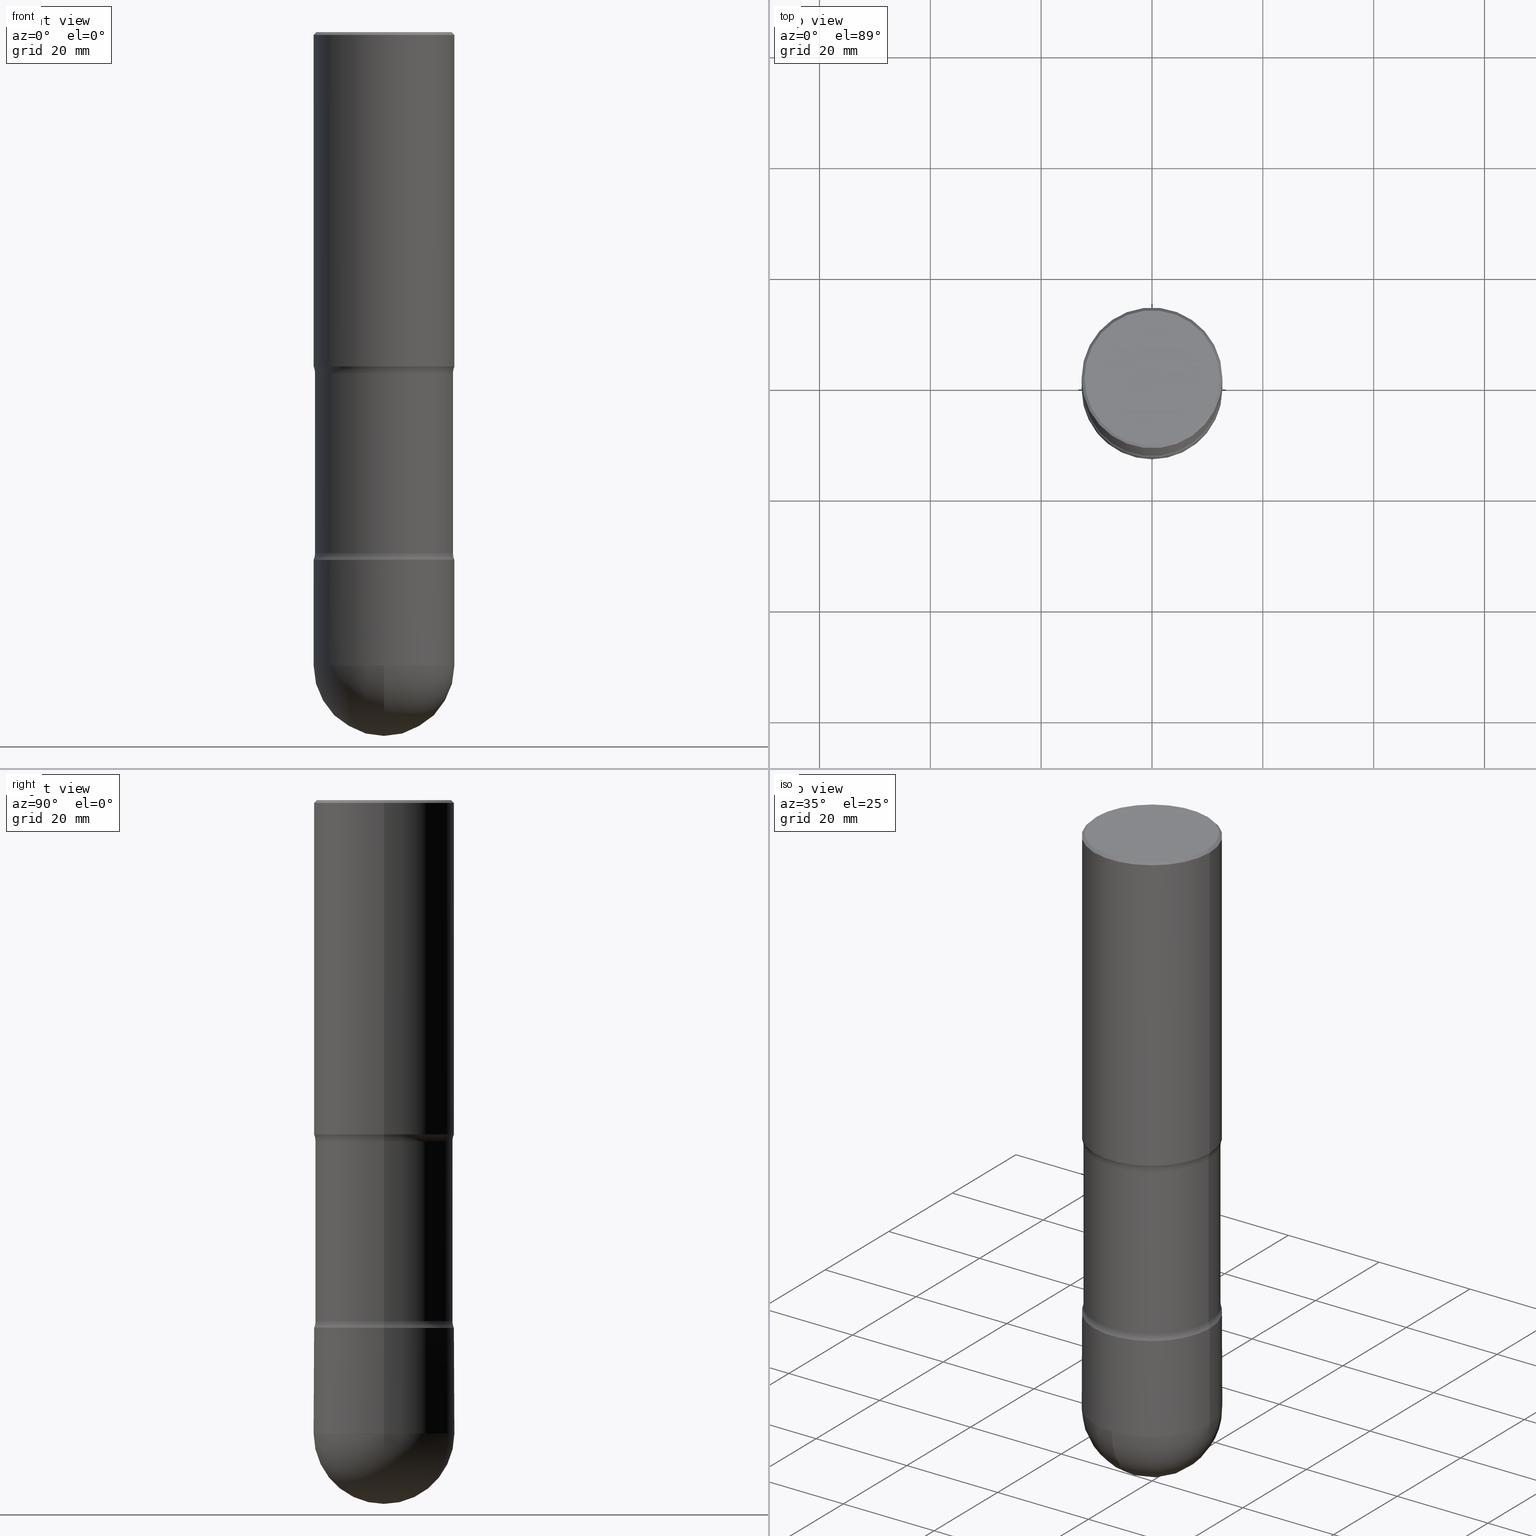
[diagram: canonical four-view strip — front | top / right | iso, engineering-drawing reading convention]
A machine part, canonical four-view strip (front | top / right | iso — engineering-drawing reading convention). The complete STEP part file that produces these views, byte-faithful:
ISO-10303-21;
HEADER;
FILE_DESCRIPTION (( 'STEP AP203' ),
    '1' );
FILE_NAME ('34954.STEP',
    '2024-02-29T19:23:50',
    ( '' ),
    ( '' ),
    'SwSTEP 2.0',
    'SolidWorks 2023',
    '' );
FILE_SCHEMA (( 'CONFIG_CONTROL_DESIGN' ));
ENDSEC;

DATA;
#1 = CARTESIAN_POINT ( 'NONE',  ( 0.4999999999999998335, -1.652330401954756320E-14, -3.750000000000000000 ) ) ;
#2 = AXIS2_PLACEMENT_3D ( 'NONE', #526, #307, #534 ) ;
#3 = FACE_OUTER_BOUND ( 'NONE', #135, .T. ) ;
#4 = CONICAL_SURFACE ( 'NONE', #443, 0.4994999999999992779, 0.7853981633970592569 ) ;
#5 = ORIENTED_EDGE ( 'NONE', *, *, #234, .F. ) ;
#6 = CARTESIAN_POINT ( 'NONE',  ( -0.4999999999999993339, -1.084964684392748411E-14, -4.499999999999999112 ) ) ;
#7 = DIRECTION ( 'NONE',  ( 2.445468806185136597E-29, -3.491481338843145583E-15, -1.000000000000000000 ) ) ;
#8 = ADVANCED_FACE ( 'NONE', ( #370 ), #158, .T. ) ;
#9 = ORIENTED_EDGE ( 'NONE', *, *, #167, .T. ) ;
#10 = FACE_OUTER_BOUND ( 'NONE', #161, .T. ) ;
#11 = APPROVAL_ROLE ( '' ) ;
#12 = ORIENTED_EDGE ( 'NONE', *, *, #196, .F. ) ;
#13 = EDGE_CURVE ( 'NONE', #148, #179, #529, .T. ) ;
#14 = PERSON_AND_ORGANIZATION ( #439, #30 ) ;
#15 = AXIS2_PLACEMENT_3D ( 'NONE', #140, #57, #109 ) ;
#16 = TOROIDAL_SURFACE ( 'NONE', #15, 0.6149999999999876676, 0.1249999999999882871 ) ;
#17 = ORIENTED_EDGE ( 'NONE', *, *, #13, .F. ) ;
#18 = LOCAL_TIME ( 14, 23, 50.00000000000000000, #231 ) ;
#19 = ADVANCED_BREP_SHAPE_REPRESENTATION ( '34954', ( #278, #82, #519 ), #531 ) ;
#20 = CARTESIAN_POINT ( 'NONE',  ( 1.100460962783311244E-28, -1.571166602479415374E-14, -4.499999999999999112 ) ) ;
#21 = LINE ( 'NONE', #125, #518 ) ;
#22 = VERTEX_POINT ( 'NONE', #539 ) ;
#23 = CIRCLE ( 'NONE', #289, 0.4999999999999993339 ) ;
#24 = DIRECTION ( 'NONE',  ( 1.000000000000000000, -6.982962677686264344E-15, 0.000000000000000000 ) ) ;
#25 = CC_DESIGN_APPROVAL ( #561, ( #89 ) ) ;
#26 = CARTESIAN_POINT ( 'NONE',  ( 9.050705008053328258E-29, -1.292200806612949328E-14, -3.701010205144336318 ) ) ;
#27 = EDGE_CURVE ( 'NONE', #495, #434, #452, .T. ) ;
#28 = ORIENTED_EDGE ( 'NONE', *, *, #91, .T. ) ;
#29 = CIRCLE ( 'NONE', #253, 0.4899999999999994360 ) ;
#30 = ORGANIZATION ( 'UNSPECIFIED', 'UNSPECIFIED', '' ) ;
#31 = EDGE_CURVE ( 'NONE', #179, #495, #284, .T. ) ;
#32 = ORIENTED_EDGE ( 'NONE', *, *, #80, .F. ) ;
#33 = DIRECTION ( 'NONE',  ( -1.000000000000000000, 6.982962677686266711E-15, 0.000000000000000000 ) ) ;
#34 = PLANE ( 'NONE',  #290 ) ;
#35 = AXIS2_PLACEMENT_3D ( 'NONE', #501, #288, #246 ) ;
#36 = ORIENTED_EDGE ( 'NONE', *, *, #130, .T. ) ;
#37 = CALENDAR_DATE ( 2024, 29, 2 ) ;
#38 =( LENGTH_UNIT ( ) NAMED_UNIT ( * ) SI_UNIT ( $, .METRE. ) );
#39 = EDGE_LOOP ( 'NONE', ( #446, #298, #36, #232 ) ) ;
#40 = DIRECTION ( 'NONE',  ( -6.982962677686265922E-15, -1.000000000000000000, 3.278217592397116651E-15 ) ) ;
#41 = CIRCLE ( 'NONE', #334, 0.4998510749934461650 ) ;
#42 = LINE ( 'NONE', #223, #397 ) ;
#43 = MECHANICAL_CONTEXT ( 'NONE', #449, 'mechanical' ) ;
#44 = EDGE_CURVE ( 'NONE', #281, #69, #502, .T. ) ;
#45 = ORIENTED_EDGE ( 'NONE', *, *, #250, .T. ) ;
#46 = ORIENTED_EDGE ( 'NONE', *, *, #31, .F. ) ;
#47 = COORDINATED_UNIVERSAL_TIME_OFFSET ( 5, 0, .BEHIND. ) ;
#48 = CIRCLE ( 'NONE', #65, 0.4999999999999998335 ) ;
#49 = DIRECTION ( 'NONE',  ( -1.000000000000000000, 6.982962677686266711E-15, -4.883557194083113462E-29 ) ) ;
#50 = APPROVAL_PERSON_ORGANIZATION ( #483, #561, #11 ) ;
#51 = ORIENTED_EDGE ( 'NONE', *, *, #366, .F. ) ;
#52 = CALENDAR_DATE ( 2024, 29, 2 ) ;
#53 = CARTESIAN_POINT ( 'NONE',  ( 1.100460962783311244E-28, -1.571166602479415374E-14, -4.499999999999999112 ) ) ;
#54 = CALENDAR_DATE ( 2024, 29, 2 ) ;
#55 = DIRECTION ( 'NONE',  ( -1.000000000000000000, 6.982962677686265922E-15, -4.883557194083112340E-29 ) ) ;
#56 = APPLICATION_CONTEXT ( 'configuration controlled 3d designs of mechanical parts and assemblies' ) ;
#57 = DIRECTION ( 'NONE',  ( 2.445468806185136597E-29, -3.491481338843145583E-15, -1.000000000000000000 ) ) ;
#58 = AXIS2_PLACEMENT_3D ( 'NONE', #522, #68, #475 ) ;
#59 = CARTESIAN_POINT ( 'NONE',  ( -0.4999999999999997224, 3.421651712066267296E-15, -0.02000000000000033348 ) ) ;
#60 = EDGE_CURVE ( 'NONE', #148, #434, #48, .T. ) ;
#61 = DIRECTION ( 'NONE',  ( 1.000000000000000000, -6.982962677686264344E-15, 0.000000000000000000 ) ) ;
#62 = CARTESIAN_POINT ( 'NONE',  ( 5.807988414689705023E-29, -8.292268179752478006E-15, -2.375000000000002220 ) ) ;
#63 = LINE ( 'NONE', #245, #362 ) ;
#64 = CYLINDRICAL_SURFACE ( 'NONE', #477, 0.4999999999999993339 ) ;
#65 = AXIS2_PLACEMENT_3D ( 'NONE', #92, #263, #471 ) ;
#66 = CIRCLE ( 'NONE', #207, 0.4998510749934461650 ) ;
#67 = LINE ( 'NONE', #229, #479 ) ;
#68 = DIRECTION ( 'NONE',  ( -2.445468806185136597E-29, 3.491481338843145583E-15, 1.000000000000000000 ) ) ;
#69 = VERTEX_POINT ( 'NONE', #386 ) ;
#70 = DIRECTION ( 'NONE',  ( 2.445468806185136597E-29, -3.491481338843145583E-15, -1.000000000000000000 ) ) ;
#71 = ORIENTED_EDGE ( 'NONE', *, *, #250, .F. ) ;
#72 = CARTESIAN_POINT ( 'NONE',  ( -0.4994999999999992779, -9.543894055540101327E-15, -3.750000000000000000 ) ) ;
#73 = CIRCLE ( 'NONE', #202, 0.4999999999999999445 ) ;
#74 = PRODUCT_DEFINITION_FORMATION_WITH_SPECIFIED_SOURCE ( 'ANY', '', #285, .NOT_KNOWN. ) ;
#75 = DIRECTION ( 'NONE',  ( 1.000000000000000000, 0.000000000000000000, 0.000000000000000000 ) ) ;
#76 = DIRECTION ( 'NONE',  ( 2.445468806185136597E-29, -3.491481338843145583E-15, -1.000000000000000000 ) ) ;
#77 = DIRECTION ( 'NONE',  ( 1.000000000000000000, -6.982962677686265922E-15, 4.883557194083112901E-29 ) ) ;
#78 = FACE_OUTER_BOUND ( 'NONE', #403, .T. ) ;
#79 = APPROVAL ( #319, 'UNSPECIFIED' ) ;
#80 = EDGE_CURVE ( 'NONE', #226, #166, #42, .T. ) ;
#81 = CARTESIAN_POINT ( 'NONE',  ( 1.087633468445620528E-28, -1.589536304466625962E-14, -4.500000000000000000 ) ) ;
#82 = MANIFOLD_SOLID_BREP ( 'Body-Move/Copy2[2]', #408 ) ;
#83 = ORIENTED_EDGE ( 'NONE', *, *, #426, .T. ) ;
#84 = ADVANCED_FACE ( 'NONE', ( #481 ), #254, .T. ) ;
#85 = AXIS2_PLACEMENT_3D ( 'NONE', #277, #142, #541 ) ;
#86 = DIRECTION ( 'NONE',  ( 1.000000000000000000, -6.982962677686265922E-15, 4.883557194083112901E-29 ) ) ;
#87 = CIRCLE ( 'NONE', #318, 0.4899999999999994360 ) ;
#88 = CARTESIAN_POINT ( 'NONE',  ( 9.170508023194262238E-29, -1.309305502066179741E-14, -3.750000000000000000 ) ) ;
#89 = PRODUCT_DEFINITION ( 'UNKNOWN', '', #74, #114 ) ;
#90 = SHAPE_DEFINITION_REPRESENTATION ( #197, #19 ) ;
#91 = EDGE_CURVE ( 'NONE', #294, #340, #433, .T. ) ;
#92 = CARTESIAN_POINT ( 'NONE',  ( 1.087633468445620528E-28, -1.589536304466625962E-14, -4.500000000000000000 ) ) ;
#93 = ORIENTED_EDGE ( 'NONE', *, *, #514, .F. ) ;
#94 = DIRECTION ( 'NONE',  ( 2.445468806185136597E-29, -3.491481338843145583E-15, -1.000000000000000000 ) ) ;
#95 = APPROVAL_ROLE ( '' ) ;
#96 = CIRCLE ( 'NONE', #181, 0.4799999999999995937 ) ;
#97 = APPROVAL_PERSON_ORGANIZATION ( #102, #79, #188 ) ;
#98 = CARTESIAN_POINT ( 'NONE',  ( 0.4899999999999994360, -1.405430561911518224E-14, -3.701010205144336318 ) ) ;
#99 = DATE_AND_TIME ( #37, #329 ) ;
#100 = EDGE_CURVE ( 'NONE', #434, #399, #273, .T. ) ;
#101 = DIRECTION ( 'NONE',  ( 2.445468806185136877E-29, -3.491481338843145188E-15, -1.000000000000000000 ) ) ;
#102 = PERSON_AND_ORGANIZATION ( #439, #30 ) ;
#103 = ADVANCED_FACE ( 'NONE', ( #244 ), #372, .T. ) ;
#104 = ORIENTED_EDGE ( 'NONE', *, *, #100, .T. ) ;
#105 = DIRECTION ( 'NONE',  ( -2.445468806185136597E-29, 3.491481338843145583E-15, 1.000000000000000000 ) ) ;
#106 = AXIS2_PLACEMENT_3D ( 'NONE', #314, #94, #556 ) ;
#107 = CARTESIAN_POINT ( 'NONE',  ( 1.100460962783311244E-28, -1.571166602479415374E-14, -4.499999999999999112 ) ) ;
#108 = DIRECTION ( 'NONE',  ( -2.445468806185136597E-29, 3.491481338843145583E-15, 1.000000000000000000 ) ) ;
#109 = DIRECTION ( 'NONE',  ( -1.000000000000000000, 6.982962677686266711E-15, -4.883557194083113462E-29 ) ) ;
#110 = ADVANCED_FACE ( 'NONE', ( #389 ), #442, .F. ) ;
#111 = CIRCLE ( 'NONE', #85, 0.4799999999999995937 ) ;
#112 = CIRCLE ( 'NONE', #296, 0.4994999999999992779 ) ;
#113 = ORIENTED_EDGE ( 'NONE', *, *, #496, .T. ) ;
#114 = DESIGN_CONTEXT ( 'detailed design', #56, 'design' ) ;
#115 = ADVANCED_FACE ( 'NONE', ( #301 ), #16, .F. ) ;
#116 = CARTESIAN_POINT ( 'NONE',  ( 9.170508023194262238E-29, -1.309305502066179741E-14, -3.750000000000000000 ) ) ;
#117 = AXIS2_PLACEMENT_3D ( 'NONE', #107, #457, #61 ) ;
#118 = AXIS2_PLACEMENT_3D ( 'NONE', #458, #157, #369 ) ;
#119 =( NAMED_UNIT ( * ) SI_UNIT ( $, .STERADIAN. ) SOLID_ANGLE_UNIT ( ) );
#120 = ORIENTED_EDGE ( 'NONE', *, *, #333, .T. ) ;
#121 = FACE_OUTER_BOUND ( 'NONE', #249, .T. ) ;
#122 = SPHERICAL_SURFACE ( 'NONE', #377, 0.4999999999999998335 ) ;
#123 = EDGE_LOOP ( 'NONE', ( #380, #535, #342, #203 ) ) ;
#124 = EDGE_CURVE ( 'NONE', #242, #22, #29, .T. ) ;
#125 = CARTESIAN_POINT ( 'NONE',  ( -0.4999999999999998335, -9.601573681818665636E-15, -3.750000000000000000 ) ) ;
#126 = FACE_OUTER_BOUND ( 'NONE', #419, .T. ) ;
#127 = DIRECTION ( 'NONE',  ( -1.000000000000000000, 6.982962677686265922E-15, 0.000000000000000000 ) ) ;
#128 = ORIENTED_EDGE ( 'NONE', *, *, #514, .T. ) ;
#129 = LINE ( 'NONE', #267, #508 ) ;
#130 = EDGE_CURVE ( 'NONE', #193, #473, #73, .T. ) ;
#131 = AXIS2_PLACEMENT_3D ( 'NONE', #485, #507, #368 ) ;
#132 = ORIENTED_EDGE ( 'NONE', *, *, #211, .T. ) ;
#133 = PLANE ( 'NONE',  #131 ) ;
#134 = EDGE_CURVE ( 'NONE', #281, #226, #96, .T. ) ;
#135 = EDGE_LOOP ( 'NONE', ( #441, #309, #200, #185 ) ) ;
#136 = DIRECTION ( 'NONE',  ( -1.000000000000000000, 6.982962677686267499E-15, 0.000000000000000000 ) ) ;
#137 = CARTESIAN_POINT ( 'NONE',  ( 9.170508023194262238E-29, -1.309305502066179741E-14, -3.750000000000000000 ) ) ;
#138 = DIRECTION ( 'NONE',  ( 2.445468806185136877E-29, -3.491481338843145188E-15, -1.000000000000000000 ) ) ;
#139 = PERSON_AND_ORGANIZATION_ROLE ( 'design_supplier' ) ;
#140 = CARTESIAN_POINT ( 'NONE',  ( 5.927791429830635639E-29, -8.463315134284777408E-15, -2.423989794855664570 ) ) ;
#141 = ORIENTED_EDGE ( 'NONE', *, *, #496, .F. ) ;
#142 = DIRECTION ( 'NONE',  ( 2.445468806185136597E-29, -3.491481338843145583E-15, -1.000000000000000000 ) ) ;
#143 = ORIENTED_EDGE ( 'NONE', *, *, #241, .T. ) ;
#144 = CARTESIAN_POINT ( 'NONE',  ( 9.170508023194262238E-29, -1.309305502066179741E-14, -3.750000000000000000 ) ) ;
#145 = PERSON_AND_ORGANIZATION ( #439, #30 ) ;
#146 = AXIS2_PLACEMENT_3D ( 'NONE', #219, #76, #476 ) ;
#147 = DIRECTION ( 'NONE',  ( -1.000000000000000000, 6.982962677686265133E-15, 0.000000000000000000 ) ) ;
#148 = VERTEX_POINT ( 'NONE', #415 ) ;
#149 = COORDINATED_UNIVERSAL_TIME_OFFSET ( 5, 0, .BEHIND. ) ;
#150 = DIRECTION ( 'NONE',  ( -1.000000000000000000, 6.982962677686266711E-15, -4.876176775795935793E-29 ) ) ;
#151 = CARTESIAN_POINT ( 'NONE',  ( 3.351822085289404787E-15, 0.4799999999999995937, -1.669508273909557867E-15 ) ) ;
#152 = DIRECTION ( 'NONE',  ( 1.000000000000000000, -6.982962677686264344E-15, 0.000000000000000000 ) ) ;
#153 = EDGE_CURVE ( 'NONE', #192, #22, #417, .T. ) ;
#154 = AXIS2_PLACEMENT_3D ( 'NONE', #116, #330, #324 ) ;
#155 = AXIS2_PLACEMENT_3D ( 'NONE', #430, #300, #349 ) ;
#156 = CARTESIAN_POINT ( 'NONE',  ( 4.890937612370354609E-31, -6.982962677686407473E-17, -0.02000000000000033348 ) ) ;
#157 = DIRECTION ( 'NONE',  ( 2.445468806185136597E-29, -3.491481338843145583E-15, -1.000000000000000000 ) ) ;
#158 = PLANE ( 'NONE',  #528 ) ;
#159 = DIRECTION ( 'NONE',  ( 2.445468806185136597E-29, -3.491481338843145583E-15, -1.000000000000000000 ) ) ;
#160 = CARTESIAN_POINT ( 'NONE',  ( 0.4994999999999992779, -1.658165776406015835E-14, -3.750000000000000000 ) ) ;
#161 = EDGE_LOOP ( 'NONE', ( #421, #311, #478, #128 ) ) ;
#162 = EDGE_LOOP ( 'NONE', ( #554, #537 ) ) ;
#163 = CIRCLE ( 'NONE', #505, 0.1249999999999882871 ) ;
#164 = CC_DESIGN_SECURITY_CLASSIFICATION ( #344, ( #74 ) ) ;
#165 = ORIENTED_EDGE ( 'NONE', *, *, #426, .F. ) ;
#166 = VERTEX_POINT ( 'NONE', #59 ) ;
#167 = EDGE_CURVE ( 'NONE', #399, #179, #23, .T. ) ;
#168 = DIRECTION ( 'NONE',  ( -1.000000000000000000, 6.982962677686267499E-15, 0.000000000000000000 ) ) ;
#169 = ORIENTED_EDGE ( 'NONE', *, *, #153, .F. ) ;
#170 = LENGTH_MEASURE_WITH_UNIT ( LENGTH_MEASURE( 0.02539999999999999897 ), #38 );
#171 = AXIS2_PLACEMENT_3D ( 'NONE', #406, #423, #546 ) ;
#172 = AXIS2_PLACEMENT_3D ( 'NONE', #474, #215, #261 ) ;
#173 = DIMENSIONAL_EXPONENTS ( 1.000000000000000000, 0.000000000000000000, 0.000000000000000000, 0.000000000000000000, 0.000000000000000000, 0.000000000000000000, 0.000000000000000000 ) ;
#174 =( CONVERSION_BASED_UNIT ( 'INCH', #170 ) LENGTH_UNIT ( ) NAMED_UNIT ( #173 ) );
#175 = ORIENTED_EDGE ( 'NONE', *, *, #13, .T. ) ;
#176 = CYLINDRICAL_SURFACE ( 'NONE', #58, 0.4999999999999993339 ) ;
#177 = DIRECTION ( 'NONE',  ( -1.000000000000000000, 6.982962677686265922E-15, -4.876176775795935793E-29 ) ) ;
#178 = FACE_OUTER_BOUND ( 'NONE', #424, .T. ) ;
#179 = VERTEX_POINT ( 'NONE', #359 ) ;
#180 = CARTESIAN_POINT ( 'NONE',  ( 9.169649480249156461E-29, -1.309182924887364045E-14, -3.749648925006552780 ) ) ;
#181 = AXIS2_PLACEMENT_3D ( 'NONE', #543, #159, #150 ) ;
#182 = CONICAL_SURFACE ( 'NONE', #155, 0.4999999999999997224, 0.7853981633974431720 ) ;
#183 = EDGE_LOOP ( 'NONE', ( #12, #9, #303, #45, #524 ) ) ;
#184 = FACE_OUTER_BOUND ( 'NONE', #316, .T. ) ;
#185 = ORIENTED_EDGE ( 'NONE', *, *, #269, .F. ) ;
#186 = CARTESIAN_POINT ( 'NONE',  ( -0.4994999999999992779, -9.542033900714521268E-15, -3.750000000000000000 ) ) ;
#187 = ORIENTED_EDGE ( 'NONE', *, *, #339, .T. ) ;
#188 = APPROVAL_ROLE ( '' ) ;
#189 = CC_DESIGN_PERSON_AND_ORGANIZATION_ASSIGNMENT ( #145, #139, ( #74 ) ) ;
#190 = EDGE_CURVE ( 'NONE', #192, #213, #41, .T. ) ;
#191 = DIRECTION ( 'NONE',  ( 1.000000000000000000, -6.982962677686264344E-15, 0.000000000000000000 ) ) ;
#192 = VERTEX_POINT ( 'NONE', #437 ) ;
#193 = VERTEX_POINT ( 'NONE', #348 ) ;
#194 = APPROVAL_DATE_TIME ( #356, #331 ) ;
#195 = AXIS2_PLACEMENT_3D ( 'NONE', #425, #463, #548 ) ;
#196 = EDGE_CURVE ( 'NONE', #399, #462, #484, .T. ) ;
#197 = PRODUCT_DEFINITION_SHAPE ( 'NONE', 'NONE',  #89 ) ;
#198 = DIRECTION ( 'NONE',  ( 6.860497997771531562E-15, 1.000000000000000000, -3.491481338843145583E-15 ) ) ;
#199 = DIRECTION ( 'NONE',  ( 2.445468806185136597E-29, -3.491481338843145583E-15, -1.000000000000000000 ) ) ;
#200 = ORIENTED_EDGE ( 'NONE', *, *, #482, .F. ) ;
#201 = CARTESIAN_POINT ( 'NONE',  ( 9.170508023194262238E-29, -1.309305502066179741E-14, -3.750000000000000000 ) ) ;
#202 = AXIS2_PLACEMENT_3D ( 'NONE', #62, #199, #504 ) ;
#203 = ORIENTED_EDGE ( 'NONE', *, *, #130, .F. ) ;
#204 = ORIENTED_EDGE ( 'NONE', *, *, #482, .T. ) ;
#205 = ADVANCED_FACE ( 'NONE', ( #422 ), #64, .T. ) ;
#206 = VECTOR ( 'NONE', #101, 39.37007874015748143 ) ;
#207 = AXIS2_PLACEMENT_3D ( 'NONE', #432, #515, #168 ) ;
#208 = CARTESIAN_POINT ( 'NONE',  ( 0.4998510749934461650, -1.652105654805012450E-14, -3.749648925006552780 ) ) ;
#209 = CYLINDRICAL_SURFACE ( 'NONE', #494, 0.4999999999999998335 ) ;
#210 =( NAMED_UNIT ( * ) PLANE_ANGLE_UNIT ( ) SI_UNIT ( $, .RADIAN. ) );
#211 = EDGE_CURVE ( 'NONE', #213, #242, #240, .T. ) ;
#212 = CYLINDRICAL_SURFACE ( 'NONE', #146, 0.4999999999999998335 ) ;
#213 = VERTEX_POINT ( 'NONE', #208 ) ;
#214 = ORIENTED_EDGE ( 'NONE', *, *, #44, .T. ) ;
#215 = DIRECTION ( 'NONE',  ( 6.860497997771531562E-15, 1.000000000000000000, -3.491481338843145583E-15 ) ) ;
#216 = FACE_OUTER_BOUND ( 'NONE', #183, .T. ) ;
#217 = AXIS2_PLACEMENT_3D ( 'NONE', #53, #233, #152 ) ;
#218 = LOCAL_TIME ( 14, 23, 50.00000000000000000, #149 ) ;
#219 = CARTESIAN_POINT ( 'NONE',  ( 9.170508023194262238E-29, -1.309305502066179741E-14, -3.750000000000000000 ) ) ;
#220 = PERSON_AND_ORGANIZATION_ROLE ( 'design_owner' ) ;
#221 = EDGE_CURVE ( 'NONE', #69, #193, #256, .T. ) ;
#222 = DIRECTION ( 'NONE',  ( 2.445468806185136597E-29, -3.491481338843145583E-15, -1.000000000000000000 ) ) ;
#223 = CARTESIAN_POINT ( 'NONE',  ( -0.4999999999999997224, 3.421651712066267296E-15, -0.02000000000000033348 ) ) ;
#224 = PERSON_AND_ORGANIZATION ( #439, #30 ) ;
#225 = CARTESIAN_POINT ( 'NONE',  ( 5.927791429830635639E-29, -8.463315134284777408E-15, -2.423989794855664570 ) ) ;
#226 = VERTEX_POINT ( 'NONE', #489 ) ;
#227 = CIRCLE ( 'NONE', #247, 0.4999999999999993339 ) ;
#228 = CALENDAR_DATE ( 2024, 29, 2 ) ;
#229 = CARTESIAN_POINT ( 'NONE',  ( -0.4899999999999994360, -9.671403308595530512E-15, -3.750000000000000000 ) ) ;
#230 = CC_DESIGN_PERSON_AND_ORGANIZATION_ASSIGNMENT ( #395, #365, ( #344 ) ) ;
#231 = COORDINATED_UNIVERSAL_TIME_OFFSET ( 5, 0, .BEHIND. ) ;
#232 = ORIENTED_EDGE ( 'NONE', *, *, #333, .F. ) ;
#233 = DIRECTION ( 'NONE',  ( -2.445468806185136597E-29, 3.491481338843145583E-15, 1.000000000000000000 ) ) ;
#234 = EDGE_CURVE ( 'NONE', #166, #69, #459, .T. ) ;
#235 = DIRECTION ( 'NONE',  ( 1.000000000000000000, -6.982962677686268288E-15, 0.000000000000000000 ) ) ;
#236 = DATE_AND_TIME ( #490, #265 ) ;
#237 = DIRECTION ( 'NONE',  ( -1.000000000000000000, 6.982962677686265133E-15, 0.000000000000000000 ) ) ;
#238 = DIRECTION ( 'NONE',  ( -6.982962677686265922E-15, -1.000000000000000000, 0.000000000000000000 ) ) ;
#239 = APPROVAL_DATE_TIME ( #99, #561 ) ;
#240 = CIRCLE ( 'NONE', #464, 0.1249999999999984596 ) ;
#241 = EDGE_CURVE ( 'NONE', #226, #281, #111, .T. ) ;
#242 = VERTEX_POINT ( 'NONE', #98 ) ;
#243 = ADVANCED_FACE ( 'NONE', ( #184 ), #497, .T. ) ;
#244 = FACE_OUTER_BOUND ( 'NONE', #390, .T. ) ;
#245 = CARTESIAN_POINT ( 'NONE',  ( 0.4994999999999992779, -1.658104487816608303E-14, -3.750000000000000000 ) ) ;
#246 = DIRECTION ( 'NONE',  ( 1.000000000000000000, -6.982962677686271444E-15, 0.000000000000000000 ) ) ;
#247 = AXIS2_PLACEMENT_3D ( 'NONE', #137, #313, #444 ) ;
#248 = ORIENTED_EDGE ( 'NONE', *, *, #80, .T. ) ;
#249 = EDGE_LOOP ( 'NONE', ( #550, #175, #510, #530 ) ) ;
#250 = EDGE_CURVE ( 'NONE', #495, #345, #129, .T. ) ;
#251 = ORIENTED_EDGE ( 'NONE', *, *, #124, .T. ) ;
#252 = PRODUCT_RELATED_PRODUCT_CATEGORY ( 'detail', '', ( #285 ) ) ;
#253 = AXIS2_PLACEMENT_3D ( 'NONE', #26, #287, #237 ) ;
#254 = CONICAL_SURFACE ( 'NONE', #154, 0.4994999999999992779, 0.7853981633970592569 ) ;
#255 = CARTESIAN_POINT ( 'NONE',  ( 1.087633468445620528E-28, -1.589536304466625962E-14, -4.500000000000000000 ) ) ;
#256 = LINE ( 'NONE', #1, #360 ) ;
#257 = PERSON_AND_ORGANIZATION ( #439, #30 ) ;
#258 = DIRECTION ( 'NONE',  ( 2.445468806185136597E-29, -3.491481338843145583E-15, -1.000000000000000000 ) ) ;
#259 = DIRECTION ( 'NONE',  ( -1.000000000000000000, 6.982962677686265133E-15, 0.000000000000000000 ) ) ;
#260 = EDGE_LOOP ( 'NONE', ( #563, #453, #83, #332 ) ) ;
#261 = DIRECTION ( 'NONE',  ( -1.000000000000000000, 6.860497997771536296E-15, 0.000000000000000000 ) ) ;
#262 = CARTESIAN_POINT ( 'NONE',  ( 9.170508023194262238E-29, -1.309305502066179741E-14, -3.750000000000000000 ) ) ;
#263 = DIRECTION ( 'NONE',  ( 1.000000000000000000, -7.105427357601001070E-15, 4.926315508542082329E-29 ) ) ;
#264 = VECTOR ( 'NONE', #488, 39.37007874015748143 ) ;
#265 = LOCAL_TIME ( 14, 23, 50.00000000000000000, #282 ) ;
#266 = FACE_OUTER_BOUND ( 'NONE', #396, .T. ) ;
#267 = CARTESIAN_POINT ( 'NONE',  ( 0.4999999999999993339, -3.491481338843128622E-15, 2.438088387897964533E-29 ) ) ;
#268 = APPLICATION_PROTOCOL_DEFINITION ( 'international standard', 'config_control_design', 1994, #56 ) ;
#269 = EDGE_CURVE ( 'NONE', #166, #473, #21, .T. ) ;
#270 = ORIENTED_EDGE ( 'NONE', *, *, #27, .T. ) ;
#271 = EDGE_LOOP ( 'NONE', ( #275, #468, #320, #165 ) ) ;
#272 = SECURITY_CLASSIFICATION_LEVEL ( 'unclassified' ) ;
#273 = CIRCLE ( 'NONE', #117, 0.4999999999999993339 ) ;
#274 = ORIENTED_EDGE ( 'NONE', *, *, #44, .F. ) ;
#275 = ORIENTED_EDGE ( 'NONE', *, *, #536, .F. ) ;
#276 = DIRECTION ( 'NONE',  ( -2.438088387897960049E-29, 3.491481338843145188E-15, 1.000000000000000000 ) ) ;
#277 = CARTESIAN_POINT ( 'NONE',  ( 0.000000000000000000, 0.000000000000000000, 0.000000000000000000 ) ) ;
#278 = MANIFOLD_SOLID_BREP ( 'Body-Move/Copy2[1]', #557 ) ;
#279 = CARTESIAN_POINT ( 'NONE',  ( -0.6149999999999876676, -4.168793087507809209E-15, -2.423989794855664570 ) ) ;
#280 = CARTESIAN_POINT ( 'NONE',  ( 1.087633468445620528E-28, -1.589536304466625962E-14, -4.500000000000000000 ) ) ;
#281 = VERTEX_POINT ( 'NONE', #382 ) ;
#282 = COORDINATED_UNIVERSAL_TIME_OFFSET ( 5, 0, .BEHIND. ) ;
#283 = EDGE_CURVE ( 'NONE', #353, #192, #564, .T. ) ;
#284 = CIRCLE ( 'NONE', #217, 0.4999999999999993339 ) ;
#285 = PRODUCT ( '34954', '34954', '', ( #43 ) ) ;
#286 = EDGE_LOOP ( 'NONE', ( #104, #381, #503, #71, #270 ) ) ;
#287 = DIRECTION ( 'NONE',  ( 2.445468806185136597E-29, -3.491481338843145583E-15, -1.000000000000000000 ) ) ;
#288 = DIRECTION ( 'NONE',  ( -6.982962677686266711E-15, -1.000000000000000000, 3.491481338843145583E-15 ) ) ;
#289 = AXIS2_PLACEMENT_3D ( 'NONE', #20, #105, #191 ) ;
#290 = AXIS2_PLACEMENT_3D ( 'NONE', #427, #532, #177 ) ;
#291 = ADVANCED_FACE ( 'NONE', ( #121 ), #470, .T. ) ;
#292 = ORIENTED_EDGE ( 'NONE', *, *, #555, .F. ) ;
#293 = CARTESIAN_POINT ( 'NONE',  ( 0.4999999999999993339, -1.789384186157110736E-14, -4.499999999999999112 ) ) ;
#294 = VERTEX_POINT ( 'NONE', #299 ) ;
#295 = AXIS2_PLACEMENT_3D ( 'NONE', #312, #405, #450 ) ;
#296 = AXIS2_PLACEMENT_3D ( 'NONE', #379, #7, #467 ) ;
#297 = DIRECTION ( 'NONE',  ( 2.445468806185136597E-29, -3.491481338843145583E-15, -1.000000000000000000 ) ) ;
#298 = ORIENTED_EDGE ( 'NONE', *, *, #411, .T. ) ;
#299 = CARTESIAN_POINT ( 'NONE',  ( -0.4899999999999994360, -5.041663422218510506E-15, -2.423989794855664570 ) ) ;
#300 = DIRECTION ( 'NONE',  ( 2.445468806185136597E-29, -3.491481338843145583E-15, -1.000000000000000000 ) ) ;
#301 = FACE_OUTER_BOUND ( 'NONE', #39, .T. ) ;
#302 = DIRECTION ( 'NONE',  ( -1.000000000000000000, 6.982962677686265133E-15, 0.000000000000000000 ) ) ;
#303 = ORIENTED_EDGE ( 'NONE', *, *, #31, .T. ) ;
#304 = VECTOR ( 'NONE', #326, 39.37007874015748143 ) ;
#305 = ADVANCED_FACE ( 'NONE', ( #216 ), #176, .T. ) ;
#306 = CIRCLE ( 'NONE', #336, 0.4899999999999994360 ) ;
#307 = DIRECTION ( 'NONE',  ( 2.445468806185136597E-29, -3.491481338843145583E-15, -1.000000000000000000 ) ) ;
#308 = DIRECTION ( 'NONE',  ( -1.000000000000000000, 6.982962677686267499E-15, 0.000000000000000000 ) ) ;
#309 = ORIENTED_EDGE ( 'NONE', *, *, #221, .T. ) ;
#310 = ADVANCED_FACE ( 'NONE', ( #266 ), #376, .F. ) ;
#311 = ORIENTED_EDGE ( 'NONE', *, *, #190, .F. ) ;
#312 = CARTESIAN_POINT ( 'NONE',  ( 9.170508023194262238E-29, -1.309305502066179741E-14, -3.750000000000000000 ) ) ;
#313 = DIRECTION ( 'NONE',  ( -2.445468806185136597E-29, 3.491481338843145583E-15, 1.000000000000000000 ) ) ;
#314 = CARTESIAN_POINT ( 'NONE',  ( 4.890937612370354609E-31, -6.982962677686407473E-17, -0.02000000000000033348 ) ) ;
#315 = DATE_TIME_ROLE ( 'creation_date' ) ;
#316 = EDGE_LOOP ( 'NONE', ( #28, #375, #93, #141 ) ) ;
#317 = AXIS2_PLACEMENT_3D ( 'NONE', #280, #55, #238 ) ;
#318 = AXIS2_PLACEMENT_3D ( 'NONE', #472, #387, #259 ) ;
#319 = APPROVAL_STATUS ( 'not_yet_approved' ) ;
#320 = ORIENTED_EDGE ( 'NONE', *, *, #190, .T. ) ;
#321 = CARTESIAN_POINT ( 'NONE',  ( 0.4899999999999994360, -1.177373816591553444E-14, -2.423989794855664570 ) ) ;
#322 = DATE_TIME_ROLE ( 'classification_date' ) ;
#323 = ADVANCED_FACE ( 'NONE', ( #392 ), #133, .F. ) ;
#324 = DIRECTION ( 'NONE',  ( 1.000000000000000000, -6.982962677686265922E-15, 0.000000000000000000 ) ) ;
#325 = ORIENTED_EDGE ( 'NONE', *, *, #533, .T. ) ;
#326 = DIRECTION ( 'NONE',  ( -2.445468806185136877E-29, 3.491481338843145188E-15, 1.000000000000000000 ) ) ;
#327 = AXIS2_PLACEMENT_3D ( 'NONE', #350, #448, #49 ) ;
#328 = AXIS2_PLACEMENT_3D ( 'NONE', #88, #222, #302 ) ;
#329 = LOCAL_TIME ( 14, 23, 50.00000000000000000, #428 ) ;
#330 = DIRECTION ( 'NONE',  ( -2.445468806185136597E-29, 3.491481338843145583E-15, 1.000000000000000000 ) ) ;
#331 = APPROVAL ( #445, 'UNSPECIFIED' ) ;
#332 = ORIENTED_EDGE ( 'NONE', *, *, #555, .T. ) ;
#333 = EDGE_CURVE ( 'NONE', #294, #473, #163, .T. ) ;
#334 = AXIS2_PLACEMENT_3D ( 'NONE', #180, #391, #308 ) ;
#335 = ORIENTED_EDGE ( 'NONE', *, *, #536, .T. ) ;
#336 = AXIS2_PLACEMENT_3D ( 'NONE', #225, #297, #566 ) ;
#337 = FACE_OUTER_BOUND ( 'NONE', #123, .T. ) ;
#338 = ORIENTED_EDGE ( 'NONE', *, *, #27, .F. ) ;
#339 = EDGE_CURVE ( 'NONE', #345, #462, #547, .T. ) ;
#340 = VERTEX_POINT ( 'NONE', #321 ) ;
#341 = CARTESIAN_POINT ( 'NONE',  ( 9.170508023194262238E-29, -1.309305502066179741E-14, -3.750000000000000000 ) ) ;
#342 = ORIENTED_EDGE ( 'NONE', *, *, #269, .T. ) ;
#343 = AXIS2_PLACEMENT_3D ( 'NONE', #447, #544, #24 ) ;
#344 = SECURITY_CLASSIFICATION ( '', '', #272 ) ;
#345 = VERTEX_POINT ( 'NONE', #499 ) ;
#346 = DIRECTION ( 'NONE',  ( 2.445468806185136877E-29, -3.491481338843145188E-15, -1.000000000000000000 ) ) ;
#347 = EDGE_CURVE ( 'NONE', #340, #242, #357, .T. ) ;
#348 = CARTESIAN_POINT ( 'NONE',  ( 0.5000000000000000000, -7.611297902150438011E-15, -2.375000000000002220 ) ) ;
#349 = DIRECTION ( 'NONE',  ( -1.000000000000000000, 6.982962677686266711E-15, 0.000000000000000000 ) ) ;
#350 = CARTESIAN_POINT ( 'NONE',  ( 5.927791429830635639E-29, -8.463315134284777408E-15, -2.423989794855664570 ) ) ;
#351 = DIRECTION ( 'NONE',  ( -0.7071067811865439090, 2.468850131082218801E-15, -0.7071067811865511255 ) ) ;
#352 = CIRCLE ( 'NONE', #106, 0.4999999999999997224 ) ;
#353 = VERTEX_POINT ( 'NONE', #186 ) ;
#354 = PERSON_AND_ORGANIZATION_ROLE ( 'creator' ) ;
#355 = CARTESIAN_POINT ( 'NONE',  ( 0.4899999999999994360, -1.645469903956984195E-14, -3.750000000000000000 ) ) ;
#356 = DATE_AND_TIME ( #52, #218 ) ;
#357 = LINE ( 'NONE', #355, #206 ) ;
#358 = DATE_AND_TIME ( #228, #18 ) ;
#359 = CARTESIAN_POINT ( 'NONE',  ( -3.491481338843020943E-15, -0.5000000000000154321, -4.499999999999998224 ) ) ;
#360 = VECTOR ( 'NONE', #138, 39.37007874015748143 ) ;
#361 = ORIENTED_EDGE ( 'NONE', *, *, #347, .F. ) ;
#362 = VECTOR ( 'NONE', #416, 39.37007874015748854 ) ;
#363 = PERSON_AND_ORGANIZATION ( #439, #30 ) ;
#364 = DIRECTION ( 'NONE',  ( -1.000000000000000000, 6.860497997771536296E-15, 0.000000000000000000 ) ) ;
#365 = PERSON_AND_ORGANIZATION_ROLE ( 'classification_officer' ) ;
#366 = EDGE_CURVE ( 'NONE', #69, #166, #352, .T. ) ;
#367 = EDGE_LOOP ( 'NONE', ( #394, #498, #120, #204 ) ) ;
#368 = DIRECTION ( 'NONE',  ( -1.000000000000000000, 6.982962677686265922E-15, -4.876176775795935793E-29 ) ) ;
#369 = DIRECTION ( 'NONE',  ( -1.000000000000000000, 6.982962677686266711E-15, -4.883557194083112901E-29 ) ) ;
#370 = FACE_OUTER_BOUND ( 'NONE', #162, .T. ) ;
#371 = CARTESIAN_POINT ( 'NONE',  ( -0.4999999999999993339, 3.552713678800496196E-15, -2.459467545127449528E-29 ) ) ;
#372 = CONICAL_SURFACE ( 'NONE', #383, 0.4999999999999997224, 0.7853981633974431720 ) ;
#373 = DIRECTION ( 'NONE',  ( 2.445468806185136597E-29, -3.491481338843145583E-15, -1.000000000000000000 ) ) ;
#374 = CC_DESIGN_APPROVAL ( #331, ( #74 ) ) ;
#375 = ORIENTED_EDGE ( 'NONE', *, *, #347, .T. ) ;
#376 = TOROIDAL_SURFACE ( 'NONE', #2, 0.6149999999999979927, 0.1249999999999984596 ) ;
#377 = AXIS2_PLACEMENT_3D ( 'NONE', #81, #86, #562 ) ;
#378 = ADVANCED_FACE ( 'NONE', ( #78 ), #34, .T. ) ;
#379 = CARTESIAN_POINT ( 'NONE',  ( 9.170508023194262238E-29, -1.309305502066179741E-14, -3.750000000000000000 ) ) ;
#380 = ORIENTED_EDGE ( 'NONE', *, *, #221, .F. ) ;
#381 = ORIENTED_EDGE ( 'NONE', *, *, #196, .T. ) ;
#382 = CARTESIAN_POINT ( 'NONE',  ( 0.4799999999999995937, -3.396558832296480127E-15, 2.359727204893467688E-29 ) ) ;
#383 = AXIS2_PLACEMENT_3D ( 'NONE', #156, #70, #33 ) ;
#384 = DIRECTION ( 'NONE',  ( 1.000000000000000000, -6.982962677686265922E-15, 0.000000000000000000 ) ) ;
#385 = CIRCLE ( 'NONE', #455, 0.4994999999999992779 ) ;
#386 = CARTESIAN_POINT ( 'NONE',  ( 0.4999999999999997224, -3.500078625662628291E-15, -0.02000000000000033348 ) ) ;
#387 = DIRECTION ( 'NONE',  ( 2.445468806185136597E-29, -3.491481338843145583E-15, -1.000000000000000000 ) ) ;
#388 = ADVANCED_FACE ( 'NONE', ( #126 ), #480, .T. ) ;
#389 = FACE_OUTER_BOUND ( 'NONE', #367, .T. ) ;
#390 = EDGE_LOOP ( 'NONE', ( #274, #516, #248, #51 ) ) ;
#391 = DIRECTION ( 'NONE',  ( 2.445468806185136597E-29, -3.491481338843145583E-15, -1.000000000000000000 ) ) ;
#392 = FACE_OUTER_BOUND ( 'NONE', #486, .T. ) ;
#393 = APPROVAL_STATUS ( 'not_yet_approved' ) ;
#394 = ORIENTED_EDGE ( 'NONE', *, *, #411, .F. ) ;
#395 = PERSON_AND_ORGANIZATION ( #439, #30 ) ;
#396 = EDGE_LOOP ( 'NONE', ( #292, #132, #251, #169 ) ) ;
#397 = VECTOR ( 'NONE', #351, 39.37007874015748143 ) ;
#398 = CIRCLE ( 'NONE', #172, 0.1249999999999882871 ) ;
#399 = VERTEX_POINT ( 'NONE', #6 ) ;
#400 = DIRECTION ( 'NONE',  ( 1.000000000000000000, -6.982962677686264344E-15, 0.000000000000000000 ) ) ;
#401 = ORIENTED_EDGE ( 'NONE', *, *, #506, .T. ) ;
#402 = DIRECTION ( 'NONE',  ( -2.445468806185136597E-29, 3.491481338843145583E-15, 1.000000000000000000 ) ) ;
#403 = EDGE_LOOP ( 'NONE', ( #325, #335 ) ) ;
#404 = DIRECTION ( 'NONE',  ( 1.000000000000000000, -6.982962677686265922E-15, 4.876176775795935793E-29 ) ) ;
#405 = DIRECTION ( 'NONE',  ( 2.445468806185136597E-29, -3.491481338843145583E-15, -1.000000000000000000 ) ) ;
#406 = CARTESIAN_POINT ( 'NONE',  ( 4.890937612370354609E-31, -6.982962677686407473E-17, -0.02000000000000033348 ) ) ;
#407 = DIRECTION ( 'NONE',  ( -6.982962677686266711E-15, -1.000000000000000000, 3.491481338843145583E-15 ) ) ;
#408 = CLOSED_SHELL ( 'NONE', ( #461, #310, #243, #115, #553, #512, #103, #440, #110, #388, #414, #84, #378, #8 ) ) ;
#409 = VECTOR ( 'NONE', #520, 39.37007874015748854 ) ;
#410 = CC_DESIGN_APPROVAL ( #79, ( #344 ) ) ;
#411 = EDGE_CURVE ( 'NONE', #340, #193, #398, .T. ) ;
#412 = CARTESIAN_POINT ( 'NONE',  ( 0.4999999999999997224, -3.500078625662628291E-15, -0.02000000000000033348 ) ) ;
#413 = CC_DESIGN_DATE_AND_TIME_ASSIGNMENT ( #542, #315, ( #89 ) ) ;
#414 = ADVANCED_FACE ( 'NONE', ( #10 ), #418, .F. ) ;
#415 = CARTESIAN_POINT ( 'NONE',  ( 1.207768993031928718E-28, -1.767171988406651324E-14, -5.000000000000000000 ) ) ;
#416 = DIRECTION ( 'NONE',  ( 0.7071067811862723484, -2.468850131079375352E-15, 0.7071067811868225750 ) ) ;
#417 = CIRCLE ( 'NONE', #35, 0.1249999999999984596 ) ;
#418 = TOROIDAL_SURFACE ( 'NONE', #118, 0.6149999999999979927, 0.1249999999999984596 ) ;
#419 = EDGE_LOOP ( 'NONE', ( #361, #401, #113, #466 ) ) ;
#420 = UNCERTAINTY_MEASURE_WITH_UNIT (LENGTH_MEASURE( 1.000000000000000082E-05 ), #174, 'distance_accuracy_value', 'NONE');
#421 = ORIENTED_EDGE ( 'NONE', *, *, #211, .F. ) ;
#422 = FACE_OUTER_BOUND ( 'NONE', #286, .T. ) ;
#423 = DIRECTION ( 'NONE',  ( 2.445468806185136597E-29, -3.491481338843145583E-15, -1.000000000000000000 ) ) ;
#424 = EDGE_LOOP ( 'NONE', ( #143, #214, #5, #32 ) ) ;
#425 = CARTESIAN_POINT ( 'NONE',  ( 5.927791429830635639E-29, -8.463315134284777408E-15, -2.423989794855664570 ) ) ;
#426 = EDGE_CURVE ( 'NONE', #431, #213, #63, .T. ) ;
#427 = CARTESIAN_POINT ( 'NONE',  ( 3.487989857504376728E-15, 0.4994999999999861773, -3.750000000000001776 ) ) ;
#428 = COORDINATED_UNIVERSAL_TIME_OFFSET ( 5, 0, .BEHIND. ) ;
#429 = CC_DESIGN_PERSON_AND_ORGANIZATION_ASSIGNMENT ( #14, #500, ( #89 ) ) ;
#430 = CARTESIAN_POINT ( 'NONE',  ( 4.890937612370354609E-31, -6.982962677686407473E-17, -0.02000000000000033348 ) ) ;
#431 = VERTEX_POINT ( 'NONE', #160 ) ;
#432 = CARTESIAN_POINT ( 'NONE',  ( 9.169649480249156461E-29, -1.309182924887364045E-14, -3.749648925006552780 ) ) ;
#433 = CIRCLE ( 'NONE', #195, 0.4899999999999994360 ) ;
#434 = VERTEX_POINT ( 'NONE', #513 ) ;
#435 = CARTESIAN_POINT ( 'NONE',  ( 5.807988414689705023E-29, -8.292268179752478006E-15, -2.375000000000002220 ) ) ;
#436 = CARTESIAN_POINT ( 'NONE',  ( -0.4999999999999993339, -1.084964684392747938E-14, -3.750000000000000000 ) ) ;
#437 = CARTESIAN_POINT ( 'NONE',  ( -0.4998510749934461650, -9.601387847793047231E-15, -3.749648925006552780 ) ) ;
#438 = DIRECTION ( 'NONE',  ( -2.445468806185136877E-29, 3.491481338843145188E-15, 1.000000000000000000 ) ) ;
#439 = PERSON ( 'UNSPECIFIED', 'UNSPECIFIED', 'UNSPECIFIED', ('UNSPECIFIED'), ('UNSPECIFIED'), ('UNSPECIFIED') ) ;
#440 = ADVANCED_FACE ( 'NONE', ( #337 ), #209, .T. ) ;
#441 = ORIENTED_EDGE ( 'NONE', *, *, #234, .T. ) ;
#442 = TOROIDAL_SURFACE ( 'NONE', #327, 0.6149999999999876676, 0.1249999999999882871 ) ;
#443 = AXIS2_PLACEMENT_3D ( 'NONE', #262, #469, #384 ) ;
#444 = DIRECTION ( 'NONE',  ( 1.000000000000000000, -6.982962677686264344E-15, 0.000000000000000000 ) ) ;
#445 = APPROVAL_STATUS ( 'not_yet_approved' ) ;
#446 = ORIENTED_EDGE ( 'NONE', *, *, #506, .F. ) ;
#447 = CARTESIAN_POINT ( 'NONE',  ( 1.100460962783311244E-28, -1.571166602479415374E-14, -4.499999999999999112 ) ) ;
#448 = DIRECTION ( 'NONE',  ( 2.445468806185136597E-29, -3.491481338843145583E-15, -1.000000000000000000 ) ) ;
#449 = APPLICATION_CONTEXT ( 'configuration controlled 3d designs of mechanical parts and assemblies' ) ;
#450 = DIRECTION ( 'NONE',  ( -1.000000000000000000, 6.982962677686265133E-15, 0.000000000000000000 ) ) ;
#451 = EDGE_CURVE ( 'NONE', #462, #345, #227, .T. ) ;
#452 = CIRCLE ( 'NONE', #343, 0.4999999999999993339 ) ;
#453 = ORIENTED_EDGE ( 'NONE', *, *, #533, .F. ) ;
#454 = CARTESIAN_POINT ( 'NONE',  ( 0.6149999999999979927, -1.714121433475897137E-14, -3.701010205144336762 ) ) ;
#455 = AXIS2_PLACEMENT_3D ( 'NONE', #341, #258, #127 ) ;
#456 = CC_DESIGN_PERSON_AND_ORGANIZATION_ASSIGNMENT ( #257, #220, ( #285 ) ) ;
#457 = DIRECTION ( 'NONE',  ( -2.445468806185136597E-29, 3.491481338843145583E-15, 1.000000000000000000 ) ) ;
#458 = CARTESIAN_POINT ( 'NONE',  ( 9.050705008053329379E-29, -1.292200806612949486E-14, -3.701010205144336762 ) ) ;
#459 = CIRCLE ( 'NONE', #171, 0.4999999999999997224 ) ;
#460 = LOCAL_TIME ( 14, 23, 50.00000000000000000, #47 ) ;
#461 = ADVANCED_FACE ( 'NONE', ( #538 ), #4, .T. ) ;
#462 = VERTEX_POINT ( 'NONE', #436 ) ;
#463 = DIRECTION ( 'NONE',  ( 2.445468806185136597E-29, -3.491481338843145583E-15, -1.000000000000000000 ) ) ;
#464 = AXIS2_PLACEMENT_3D ( 'NONE', #454, #198, #364 ) ;
#465 = CARTESIAN_POINT ( 'NONE',  ( 0.000000000000000000, 0.000000000000000000, 0.000000000000000000 ) ) ;
#466 = ORIENTED_EDGE ( 'NONE', *, *, #124, .F. ) ;
#467 = DIRECTION ( 'NONE',  ( -1.000000000000000000, 6.982962677686265922E-15, 0.000000000000000000 ) ) ;
#468 = ORIENTED_EDGE ( 'NONE', *, *, #283, .T. ) ;
#469 = DIRECTION ( 'NONE',  ( -2.445468806185136597E-29, 3.491481338843145583E-15, 1.000000000000000000 ) ) ;
#470 = SPHERICAL_SURFACE ( 'NONE', #493, 0.4999999999999998335 ) ;
#471 = DIRECTION ( 'NONE',  ( 7.105427357601001070E-15, 1.000000000000000000, 0.000000000000000000 ) ) ;
#472 = CARTESIAN_POINT ( 'NONE',  ( 9.050705008053328258E-29, -1.292200806612949328E-14, -3.701010205144336318 ) ) ;
#473 = VERTEX_POINT ( 'NONE', #517 ) ;
#474 = CARTESIAN_POINT ( 'NONE',  ( 0.6149999999999876676, -1.268252140291418608E-14, -2.423989794855664570 ) ) ;
#475 = DIRECTION ( 'NONE',  ( 1.000000000000000000, -6.982962677686266711E-15, 4.876176775795935793E-29 ) ) ;
#476 = DIRECTION ( 'NONE',  ( -1.000000000000000000, 6.982962677686265133E-15, 0.000000000000000000 ) ) ;
#477 = AXIS2_PLACEMENT_3D ( 'NONE', #549, #108, #551 ) ;
#478 = ORIENTED_EDGE ( 'NONE', *, *, #153, .T. ) ;
#479 = VECTOR ( 'NONE', #346, 39.37007874015748143 ) ;
#480 = CYLINDRICAL_SURFACE ( 'NONE', #328, 0.4899999999999994360 ) ;
#481 = FACE_OUTER_BOUND ( 'NONE', #260, .T. ) ;
#482 = EDGE_CURVE ( 'NONE', #473, #193, #540, .T. ) ;
#483 = PERSON_AND_ORGANIZATION ( #439, #30 ) ;
#484 = LINE ( 'NONE', #371, #304 ) ;
#485 = CARTESIAN_POINT ( 'NONE',  ( 9.170508023194262238E-29, -1.309305502066179741E-14, -3.750000000000000000 ) ) ;
#486 = EDGE_LOOP ( 'NONE', ( #187, #560 ) ) ;
#487 = EDGE_LOOP ( 'NONE', ( #17, #491, #338, #46 ) ) ;
#488 = DIRECTION ( 'NONE',  ( 0.7071067811865439090, -7.319954787623243424E-15, -0.7071067811865511255 ) ) ;
#489 = CARTESIAN_POINT ( 'NONE',  ( -0.4799999999999995937, 3.351822085289405181E-15, -2.340564852382047163E-29 ) ) ;
#490 = CALENDAR_DATE ( 2024, 29, 2 ) ;
#491 = ORIENTED_EDGE ( 'NONE', *, *, #60, .T. ) ;
#492 = CC_DESIGN_DATE_AND_TIME_ASSIGNMENT ( #358, #322, ( #344 ) ) ;
#493 = AXIS2_PLACEMENT_3D ( 'NONE', #255, #77, #40 ) ;
#494 = AXIS2_PLACEMENT_3D ( 'NONE', #201, #373, #147 ) ;
#495 = VERTEX_POINT ( 'NONE', #293 ) ;
#496 = EDGE_CURVE ( 'NONE', #294, #22, #67, .T. ) ;
#497 = CYLINDRICAL_SURFACE ( 'NONE', #295, 0.4899999999999994360 ) ;
#498 = ORIENTED_EDGE ( 'NONE', *, *, #91, .F. ) ;
#499 = CARTESIAN_POINT ( 'NONE',  ( 0.4999999999999993339, -1.658453635950492446E-14, -3.750000000000000000 ) ) ;
#500 = PERSON_AND_ORGANIZATION_ROLE ( 'creator' ) ;
#501 = CARTESIAN_POINT ( 'NONE',  ( -0.6149999999999979927, -8.627486019352455660E-15, -3.701010205144336762 ) ) ;
#502 = LINE ( 'NONE', #412, #264 ) ;
#503 = ORIENTED_EDGE ( 'NONE', *, *, #339, .F. ) ;
#504 = DIRECTION ( 'NONE',  ( -1.000000000000000000, 6.982962677686267499E-15, 0.000000000000000000 ) ) ;
#505 = AXIS2_PLACEMENT_3D ( 'NONE', #279, #407, #235 ) ;
#506 = EDGE_CURVE ( 'NONE', #340, #294, #306, .T. ) ;
#507 = DIRECTION ( 'NONE',  ( 2.438088387897960049E-29, -3.491481338843145188E-15, -1.000000000000000000 ) ) ;
#508 = VECTOR ( 'NONE', #438, 39.37007874015748143 ) ;
#509 = APPROVAL_PERSON_ORGANIZATION ( #224, #331, #95 ) ;
#510 = ORIENTED_EDGE ( 'NONE', *, *, #167, .F. ) ;
#511 = DIRECTION ( 'NONE',  ( 2.445468806185136597E-29, -3.491481338843145583E-15, -1.000000000000000000 ) ) ;
#512 = ADVANCED_FACE ( 'NONE', ( #178 ), #182, .T. ) ;
#513 = CARTESIAN_POINT ( 'NONE',  ( 3.552713678800606637E-15, 0.4999999999999837352, -4.500000000000000888 ) ) ;
#514 = EDGE_CURVE ( 'NONE', #22, #242, #87, .T. ) ;
#515 = DIRECTION ( 'NONE',  ( 2.445468806185136597E-29, -3.491481338843145583E-15, -1.000000000000000000 ) ) ;
#516 = ORIENTED_EDGE ( 'NONE', *, *, #134, .T. ) ;
#517 = CARTESIAN_POINT ( 'NONE',  ( -0.4999999999999999445, -4.800786840909344651E-15, -2.375000000000002220 ) ) ;
#518 = VECTOR ( 'NONE', #525, 39.37007874015748143 ) ;
#519 = AXIS2_PLACEMENT_3D ( 'NONE', #465, #523, #75 ) ;
#520 = DIRECTION ( 'NONE',  ( -0.7071067811862723484, 7.493145998869358618E-15, 0.7071067811868225750 ) ) ;
#521 = APPLICATION_PROTOCOL_DEFINITION ( 'international standard', 'config_control_design', 1994, #449 ) ;
#522 = CARTESIAN_POINT ( 'NONE',  ( 0.000000000000000000, 0.000000000000000000, 0.000000000000000000 ) ) ;
#523 = DIRECTION ( 'NONE',  ( 0.000000000000000000, 0.000000000000000000, 1.000000000000000000 ) ) ;
#524 = ORIENTED_EDGE ( 'NONE', *, *, #451, .F. ) ;
#525 = DIRECTION ( 'NONE',  ( 2.445468806185136877E-29, -3.491481338843145188E-15, -1.000000000000000000 ) ) ;
#526 = CARTESIAN_POINT ( 'NONE',  ( 9.050705008053329379E-29, -1.292200806612949486E-14, -3.701010205144336762 ) ) ;
#527 = FACE_OUTER_BOUND ( 'NONE', #487, .T. ) ;
#528 = AXIS2_PLACEMENT_3D ( 'NONE', #151, #276, #404 ) ;
#529 = CIRCLE ( 'NONE', #317, 0.4999999999999998335 ) ;
#530 = ORIENTED_EDGE ( 'NONE', *, *, #100, .F. ) ;
#531 =( GEOMETRIC_REPRESENTATION_CONTEXT ( 3 ) GLOBAL_UNCERTAINTY_ASSIGNED_CONTEXT ( ( #420 ) ) GLOBAL_UNIT_ASSIGNED_CONTEXT ( ( #174, #210, #119 ) ) REPRESENTATION_CONTEXT ( 'NONE', 'WORKASPACE' ) );
#532 = DIRECTION ( 'NONE',  ( 2.438088387897960049E-29, -3.491481338843145188E-15, -1.000000000000000000 ) ) ;
#533 = EDGE_CURVE ( 'NONE', #431, #353, #385, .T. ) ;
#534 = DIRECTION ( 'NONE',  ( -1.000000000000000000, 6.982962677686266711E-15, -4.883557194083112901E-29 ) ) ;
#535 = ORIENTED_EDGE ( 'NONE', *, *, #366, .T. ) ;
#536 = EDGE_CURVE ( 'NONE', #353, #431, #112, .T. ) ;
#537 = ORIENTED_EDGE ( 'NONE', *, *, #134, .F. ) ;
#538 = FACE_OUTER_BOUND ( 'NONE', #271, .T. ) ;
#539 = CARTESIAN_POINT ( 'NONE',  ( -0.4899999999999994360, -9.500356354063226377E-15, -3.701010205144336318 ) ) ;
#540 = CIRCLE ( 'NONE', #559, 0.4999999999999999445 ) ;
#541 = DIRECTION ( 'NONE',  ( -1.000000000000000000, 6.982962677686266711E-15, -4.876176775795935793E-29 ) ) ;
#542 = DATE_AND_TIME ( #54, #460 ) ;
#543 = CARTESIAN_POINT ( 'NONE',  ( 0.000000000000000000, 0.000000000000000000, 0.000000000000000000 ) ) ;
#544 = DIRECTION ( 'NONE',  ( -2.445468806185136597E-29, 3.491481338843145583E-15, 1.000000000000000000 ) ) ;
#545 = APPROVAL_DATE_TIME ( #236, #79 ) ;
#546 = DIRECTION ( 'NONE',  ( -1.000000000000000000, 6.982962677686266711E-15, 0.000000000000000000 ) ) ;
#547 = CIRCLE ( 'NONE', #558, 0.4999999999999993339 ) ;
#548 = DIRECTION ( 'NONE',  ( -1.000000000000000000, 6.982962677686267499E-15, 0.000000000000000000 ) ) ;
#549 = CARTESIAN_POINT ( 'NONE',  ( 0.000000000000000000, 0.000000000000000000, 0.000000000000000000 ) ) ;
#550 = ORIENTED_EDGE ( 'NONE', *, *, #60, .F. ) ;
#551 = DIRECTION ( 'NONE',  ( 1.000000000000000000, -6.982962677686266711E-15, 4.876176775795935793E-29 ) ) ;
#552 = CC_DESIGN_PERSON_AND_ORGANIZATION_ASSIGNMENT ( #363, #354, ( #74 ) ) ;
#553 = ADVANCED_FACE ( 'NONE', ( #3 ), #212, .T. ) ;
#554 = ORIENTED_EDGE ( 'NONE', *, *, #241, .F. ) ;
#555 = EDGE_CURVE ( 'NONE', #213, #192, #66, .T. ) ;
#556 = DIRECTION ( 'NONE',  ( -1.000000000000000000, 6.982962677686266711E-15, 0.000000000000000000 ) ) ;
#557 = CLOSED_SHELL ( 'NONE', ( #205, #565, #291, #305, #323 ) ) ;
#558 = AXIS2_PLACEMENT_3D ( 'NONE', #144, #402, #400 ) ;
#559 = AXIS2_PLACEMENT_3D ( 'NONE', #435, #511, #136 ) ;
#560 = ORIENTED_EDGE ( 'NONE', *, *, #451, .T. ) ;
#561 = APPROVAL ( #393, 'UNSPECIFIED' ) ;
#562 = DIRECTION ( 'NONE',  ( -6.982962677686265922E-15, -1.000000000000000000, 3.278217592397116651E-15 ) ) ;
#563 = ORIENTED_EDGE ( 'NONE', *, *, #283, .F. ) ;
#564 = LINE ( 'NONE', #72, #409 ) ;
#565 = ADVANCED_FACE ( 'NONE', ( #527 ), #122, .T. ) ;
#566 = DIRECTION ( 'NONE',  ( -1.000000000000000000, 6.982962677686267499E-15, 0.000000000000000000 ) ) ;
ENDSEC;
END-ISO-10303-21;
